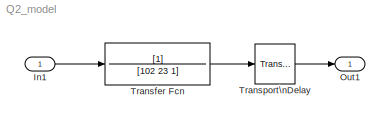
MODEL Q2_model
KIND model
BLOCK [Inport] In1
  SID = 1
BLOCK [Outport] Out1
  SID = 4
BLOCK [TransferFcn] Transfer Fcn
  Denominator = [102 23 1]
  SID = 2
BLOCK [TransportDelay] Transport\nDelay
  DelayTime = 30
  Ports = [1, 1]
  SID = 3
LINE In1:1 -> Transfer Fcn:1
LINE Transfer Fcn:1 -> Transport\nDelay:1
LINE Transport\nDelay:1 -> Out1:1
